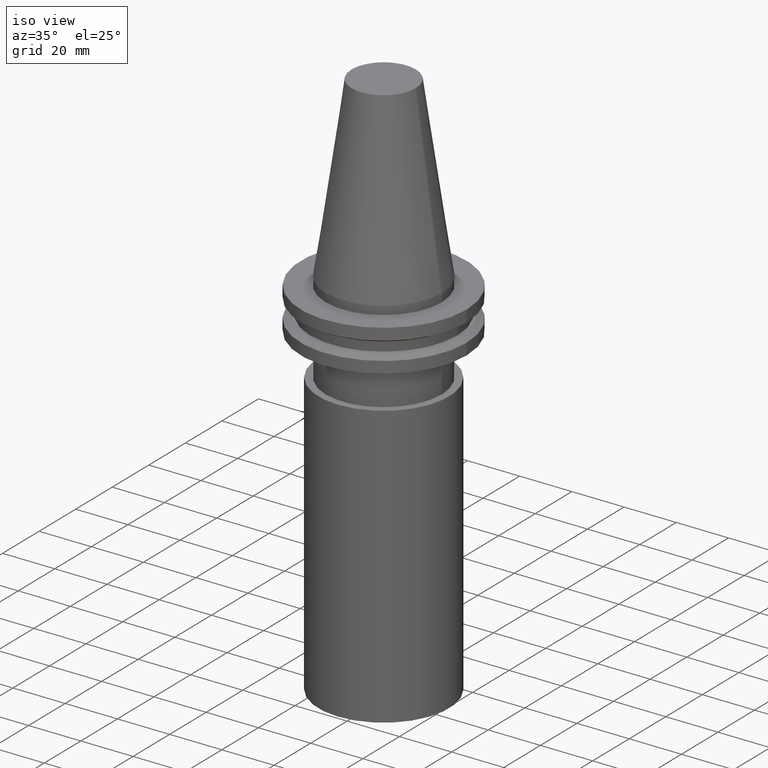
[diagram: clean part render]
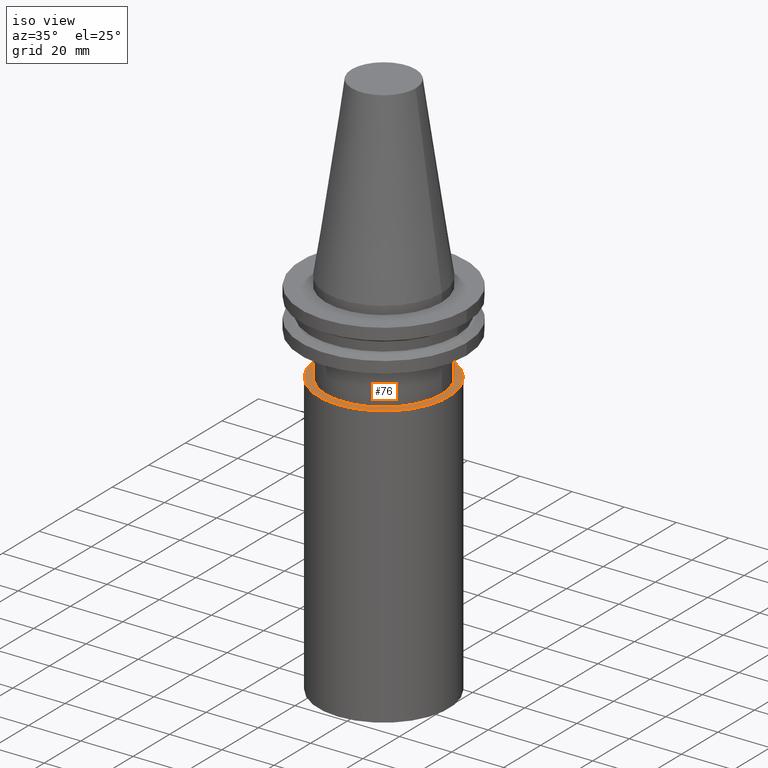
[diagram: same view with one face highlighted and labeled with its STEP entity id]
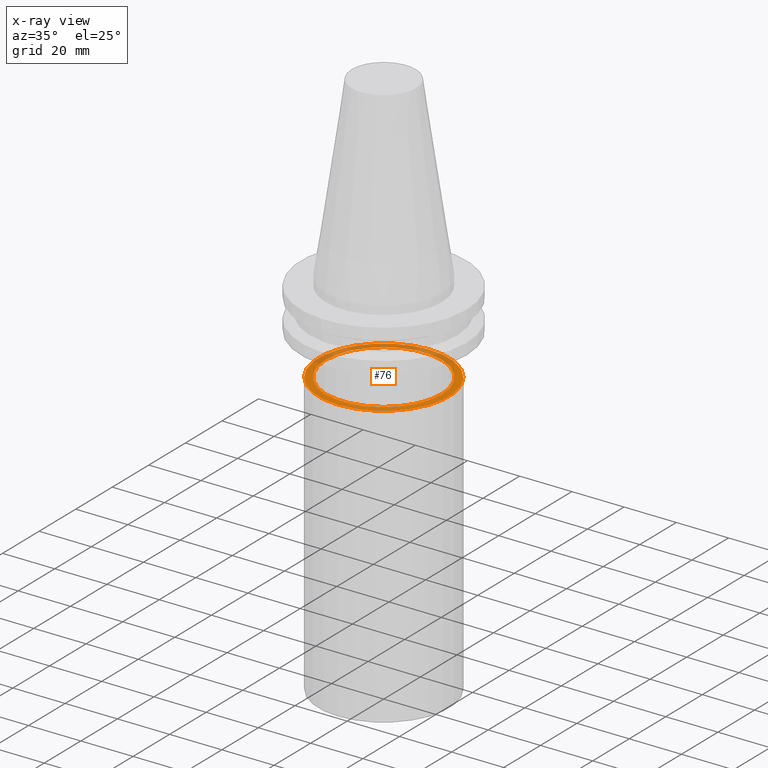
[diagram: x-ray of the same camera — body ghosted, the highlighted face saturated]
A machine part, iso view. The second image highlights one B-rep face of the part: STEP entity #76.
The next image is the same camera in x-ray: the body ghosted, the highlighted face saturated — about 35% of this face is hidden behind the body in this view.
In plain terms, the highlighted planar face has unit normal (0, -0, 1).
Its self-contained STEP definition (entity closure, byte-faithful):
#25 = EDGE_LOOP ( 'NONE', ( #228 ) ) ;
#56 = AXIS2_PLACEMENT_3D ( 'NONE', #152, #297, #120 ) ;
#58 = CARTESIAN_POINT ( 'NONE',  ( 0.000000000000000000, 25.00000000000000000, -35.04999999999999716 ) ) ;
#76 = ADVANCED_FACE ( 'NONE', ( #333, #92 ), #360, .T. ) ;
#86 = DIRECTION ( 'NONE',  ( -0.000000000000000000, 9.075659465658940137E-17, -1.000000000000000000 ) ) ;
#92 = FACE_OUTER_BOUND ( 'NONE', #25, .T. ) ;
#100 = EDGE_CURVE ( 'NONE', #212, #212, #242, .T. ) ;
#120 = DIRECTION ( 'NONE',  ( 0.000000000000000000, -1.000000000000000000, -9.075659465658938904E-17 ) ) ;
#140 = AXIS2_PLACEMENT_3D ( 'NONE', #180, #86, #213 ) ;
#141 = CARTESIAN_POINT ( 'NONE',  ( 0.000000000000000000, 0.000000000000000000, -35.04999999999999716 ) ) ;
#142 = AXIS2_PLACEMENT_3D ( 'NONE', #141, #371, #282 ) ;
#152 = CARTESIAN_POINT ( 'NONE',  ( 0.000000000000000000, 1.029594934207559202E-31, -35.04999999999999716 ) ) ;
#180 = CARTESIAN_POINT ( 'NONE',  ( 0.000000000000000000, -1.540743955509788682E-30, -35.04999999999999716 ) ) ;
#212 = VERTEX_POINT ( 'NONE', #58 ) ;
#213 = DIRECTION ( 'NONE',  ( 0.000000000000000000, 1.000000000000000000, 0.000000000000000000 ) ) ;
#228 = ORIENTED_EDGE ( 'NONE', *, *, #100, .F. ) ;
#242 = CIRCLE ( 'NONE', #140, 25.00000000000000000 ) ;
#266 = CARTESIAN_POINT ( 'NONE',  ( 22.22499999999999787, 0.000000000000000000, -35.04999999999999716 ) ) ;
#282 = DIRECTION ( 'NONE',  ( 1.000000000000000000, 0.000000000000000000, 0.000000000000000000 ) ) ;
#297 = DIRECTION ( 'NONE',  ( 0.000000000000000000, -9.075659465658938904E-17, 1.000000000000000000 ) ) ;
#314 = ORIENTED_EDGE ( 'NONE', *, *, #364, .F. ) ;
#329 = VERTEX_POINT ( 'NONE', #266 ) ;
#330 = CIRCLE ( 'NONE', #142, 22.22499999999999787 ) ;
#333 = FACE_BOUND ( 'NONE', #346, .T. ) ;
#346 = EDGE_LOOP ( 'NONE', ( #314 ) ) ;
#360 = PLANE ( 'NONE',  #56 ) ;
#364 = EDGE_CURVE ( 'NONE', #329, #329, #330, .T. ) ;
#371 = DIRECTION ( 'NONE',  ( -0.000000000000000000, -0.000000000000000000, 1.000000000000000000 ) ) ;